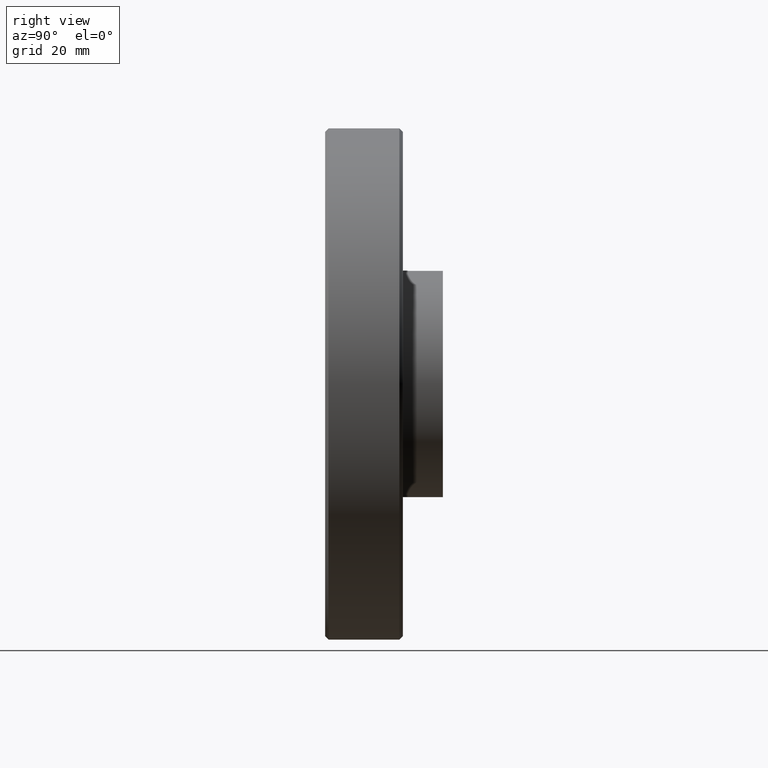
[diagram: clean part render]
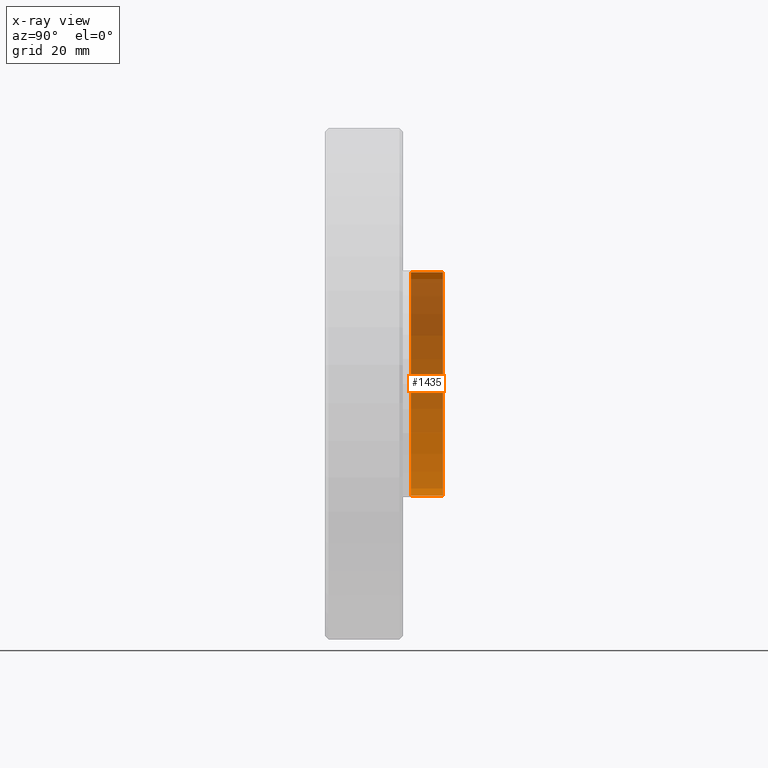
[diagram: x-ray — body ghosted, one internal face saturated and labeled with its STEP entity id]
A machine part, right view, then the same camera in x-ray: the body is ghosted and one INTERNAL B-rep face — a face not visible from any outside direction — is saturated and labeled: STEP entity #1435.
In plain terms, the highlighted cylindrical surface (partial cylindrical patch) has radius 24.8285 mm, axis along (-0, -1, -0).
Its self-contained STEP definition (entity closure, byte-faithful):
#19 = EDGE_CURVE ( 'NONE', #8699, #8245, #5558, .T. ) ;
#948 = AXIS2_PLACEMENT_3D ( 'NONE', #8295, #6885, #7527 ) ;
#1116 = ORIENTED_EDGE ( 'NONE', *, *, #19, .T. ) ;
#1273 = CARTESIAN_POINT ( 'NONE',  ( 1.197092246166537759E-16, -0.3449999999999994738, 0.9775000000000000355 ) ) ;
#1305 = ORIENTED_EDGE ( 'NONE', *, *, #4664, .F. ) ;
#1435 = ADVANCED_FACE ( 'NONE', ( #7067 ), #5459, .F. ) ;
#1461 = DIRECTION ( 'NONE',  ( 0.0000000000000000000, -1.000000000000000000, -0.0000000000000000000 ) ) ;
#1552 = AXIS2_PLACEMENT_3D ( 'NONE', #3843, #3114, #4394 ) ;
#1721 = VERTEX_POINT ( 'NONE', #4461 ) ;
#1998 = ORIENTED_EDGE ( 'NONE', *, *, #5535, .F. ) ;
#2524 = VECTOR ( 'NONE', #6084, 39.37007874015748143 ) ;
#2751 = VECTOR ( 'NONE', #4659, 39.37007874015748143 ) ;
#2829 = CARTESIAN_POINT ( 'NONE',  ( 0.0000000000000000000, 0.07000000000000082545, 0.0000000000000000000 ) ) ;
#3111 = CARTESIAN_POINT ( 'NONE',  ( 1.197092246166537759E-16, 0.3500000000000000888, 0.9775000000000000355 ) ) ;
#3114 = DIRECTION ( 'NONE',  ( -0.0000000000000000000, -1.000000000000000000, -0.0000000000000000000 ) ) ;
#3150 = EDGE_CURVE ( 'NONE', #8245, #4627, #3480, .T. ) ;
#3208 = EDGE_LOOP ( 'NONE', ( #1305, #1116, #4920, #1998 ) ) ;
#3480 = CIRCLE ( 'NONE', #4925, 0.9775000000000000355 ) ;
#3843 = CARTESIAN_POINT ( 'NONE',  ( 0.0000000000000000000, -0.3449999999999994738, 0.0000000000000000000 ) ) ;
#3975 = CARTESIAN_POINT ( 'NONE',  ( 0.0000000000000000000, 0.07000000000000082545, -0.9775000000000000355 ) ) ;
#4394 = DIRECTION ( 'NONE',  ( 0.0000000000000000000, 0.0000000000000000000, -1.000000000000000000 ) ) ;
#4461 = CARTESIAN_POINT ( 'NONE',  ( 0.0000000000000000000, 0.3500000000000000888, -0.9775000000000000355 ) ) ;
#4627 = VERTEX_POINT ( 'NONE', #3975 ) ;
#4659 = DIRECTION ( 'NONE',  ( -0.0000000000000000000, -1.000000000000000000, -0.0000000000000000000 ) ) ;
#4664 = EDGE_CURVE ( 'NONE', #8699, #1721, #5266, .T. ) ;
#4869 = CARTESIAN_POINT ( 'NONE',  ( 1.197092246166537759E-16, 0.07000000000000082545, 0.9775000000000000355 ) ) ;
#4920 = ORIENTED_EDGE ( 'NONE', *, *, #3150, .T. ) ;
#4925 = AXIS2_PLACEMENT_3D ( 'NONE', #2829, #1461, #6298 ) ;
#5266 = CIRCLE ( 'NONE', #948, 0.9775000000000000355 ) ;
#5459 = CYLINDRICAL_SURFACE ( 'NONE', #1552, 0.9775000000000000355 ) ;
#5535 = EDGE_CURVE ( 'NONE', #1721, #4627, #8375, .T. ) ;
#5558 = LINE ( 'NONE', #1273, #2524 ) ;
#6075 = CARTESIAN_POINT ( 'NONE',  ( 0.0000000000000000000, -0.3449999999999994738, -0.9775000000000000355 ) ) ;
#6084 = DIRECTION ( 'NONE',  ( -0.0000000000000000000, -1.000000000000000000, -0.0000000000000000000 ) ) ;
#6298 = DIRECTION ( 'NONE',  ( 0.0000000000000000000, 0.0000000000000000000, -1.000000000000000000 ) ) ;
#6885 = DIRECTION ( 'NONE',  ( -0.0000000000000000000, -1.000000000000000000, -0.0000000000000000000 ) ) ;
#7067 = FACE_OUTER_BOUND ( 'NONE', #3208, .T. ) ;
#7527 = DIRECTION ( 'NONE',  ( 0.0000000000000000000, 0.0000000000000000000, 1.000000000000000000 ) ) ;
#8245 = VERTEX_POINT ( 'NONE', #4869 ) ;
#8295 = CARTESIAN_POINT ( 'NONE',  ( 0.0000000000000000000, 0.3500000000000000888, 0.0000000000000000000 ) ) ;
#8375 = LINE ( 'NONE', #6075, #2751 ) ;
#8699 = VERTEX_POINT ( 'NONE', #3111 ) ;